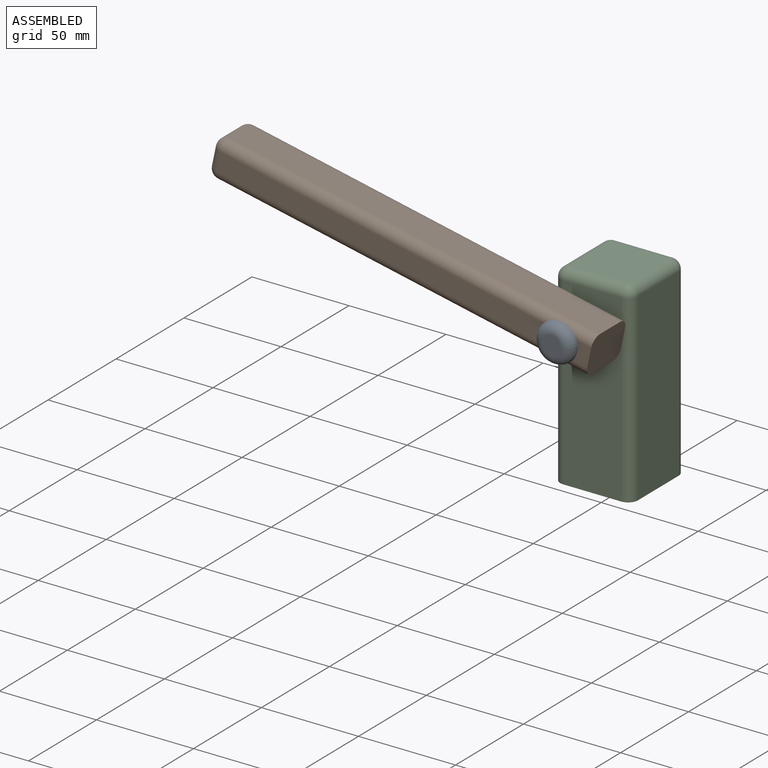
[diagram: assembled view]
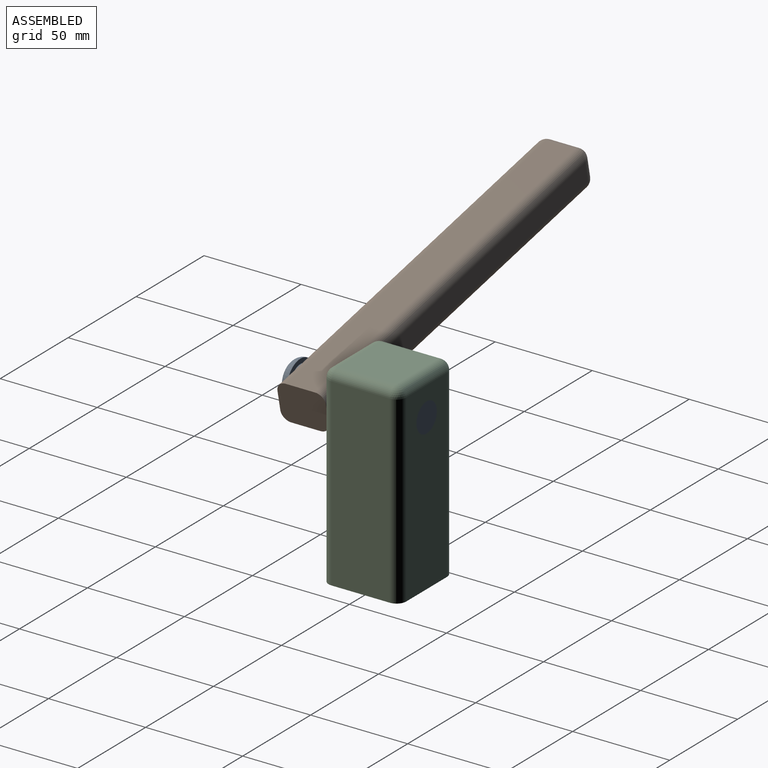
[diagram: assembled view, second angle]
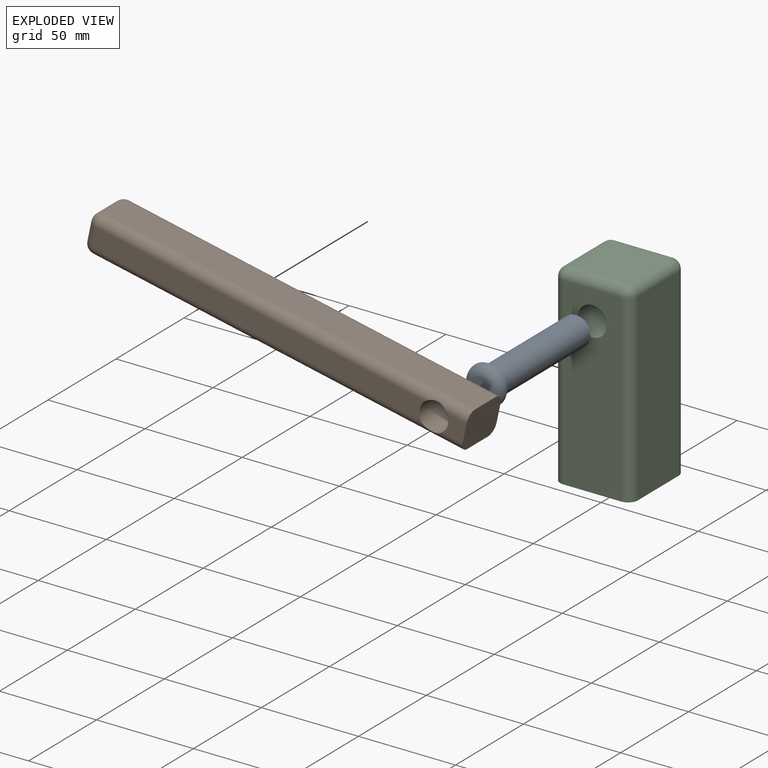
[diagram: exploded view]
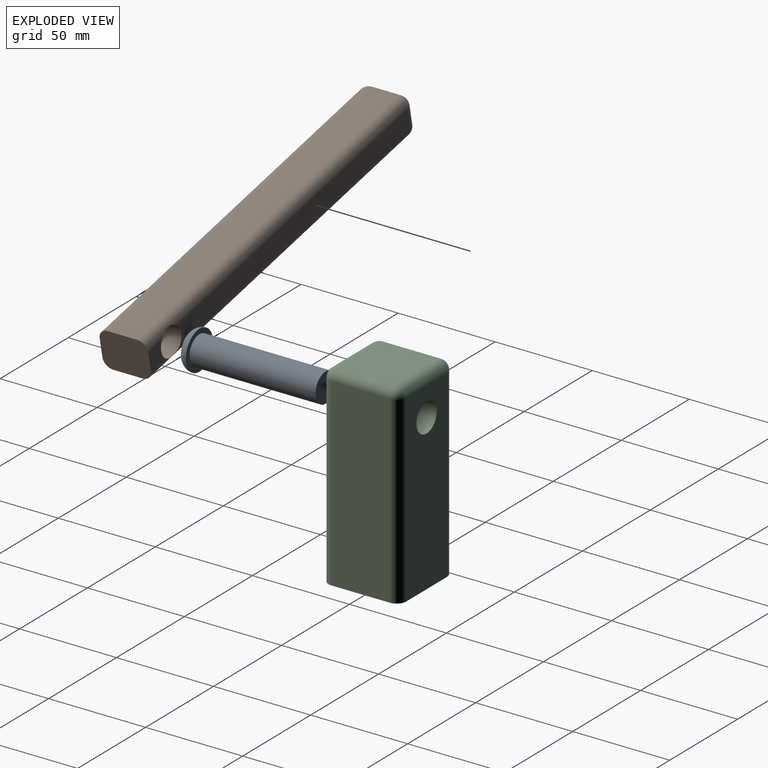
[diagram: exploded view, second angle]
ASSEMBLY  parts=3 mates=2
PART A: 5 faces, bbox 21.6x70x21.6 mm
  f0: cylinder r=7.5mm len=65mm, axis (0,1,0), area 3063.1mm2, adj f1,f3
  f1: plane 15x15mm, normal (0,1,0), area 176.7mm2, adj f0
  f2: plane 10x10mm, normal (0,-1,0), area 78.5mm2, adj f4
  f3: plane 20x20mm, normal (0,1,0), area 137.4mm2, adj f0,f4
  f4: torus R=5mm, axis (0,-1,0), area 403.8mm2, adj f2,f3
PART B: 21 faces, bbox 200x25x20 mm
  f0: plane 10.67x10mm, normal (0,-1,0), area 93.6mm2, adj f5,f6,f9,f14
  f1: plane 10.67x10mm, normal (0,1,0), area 93.6mm2, adj f5,f6,f11,f17
  f2: plane 195x15mm, normal (0,0,1), area 2925mm2, adj f6,f14,f17,f20
  f3: plane 15x10mm, normal (-1,0,0), area 150mm2, adj f10,f15,f16,f20
  f4: plane 195x15mm, normal (0,0,-1), area 2925mm2, adj f6,f9,f10,f11
  f5: cylinder r=7.5mm len=25mm, axis (0,1,0), area 1160.7mm2, adj f0,f1,f7,f8,f9,f11,f14,f17
  f6: plane 25x20mm, normal (1,0,0), area 478.5mm2, adj f0,f1,f2,f4,f9,f11,f14,f17
  f7: plane 173.15x10mm, normal (0,-1,0), area 1718.4mm2, adj f5,f9,f14,f15
  f8: plane 173.15x10mm, normal (0,1,0), area 1718.4mm2, adj f5,f11,f16,f17
  f9: cylinder r=5mm len=195mm, axis (-1,0,0), area 1511.5mm2, adj f0,f4,f5,f6,f7,f12
  f10: cylinder r=5mm len=15mm, axis (0,1,0), area 117.8mm2, adj f3,f4,f12,f13
  f11: cylinder r=5mm len=195mm, axis (1,0,0), area 1511.5mm2, adj f1,f4,f5,f6,f8,f13
  f12: sphere r=5mm, area 39.3mm2, adj f9,f10,f15
  f13: sphere r=5mm, area 39.3mm2, adj f10,f11,f16
  f14: cylinder r=5mm len=195mm, axis (1,0,0), area 1511.5mm2, adj f0,f2,f5,f6,f7,f18
  f15: cylinder r=5mm len=10mm, axis (0,0,1), area 78.5mm2, adj f3,f7,f12,f18
  f16: cylinder r=5mm len=10mm, axis (0,0,-1), area 78.5mm2, adj f3,f8,f13,f19
  f17: cylinder r=5mm len=195mm, axis (-1,0,0), area 1511.5mm2, adj f1,f2,f5,f6,f8,f19
  f18: sphere r=5mm, area 39.3mm2, adj f14,f15,f20
  f19: sphere r=5mm, area 39.3mm2, adj f16,f17,f20
  f20: cylinder r=5mm len=15mm, axis (0,-1,0), area 117.8mm2, adj f2,f3,f18,f19
PART C: 19 faces, bbox 40x40x100 mm
  f0: plane 40x40mm, normal (0,0,-1), area 1578.5mm2, adj f1,f3,f4,f5,f6,f8,f11,f14
  f1: plane 95x30mm, normal (1,0,0), area 2850mm2, adj f0,f11,f14,f17
  f2: plane 30x30mm, normal (0,0,1), area 900mm2, adj f7,f12,f13,f17
  f3: plane 95x30mm, normal (-1,0,0), area 2850mm2, adj f0,f6,f7,f8
  f4: plane 95x30mm, normal (0,-1,0), area 2673.3mm2, adj f0,f6,f11,f12,f18
  f5: plane 95x30mm, normal (0,1,0), area 2673.3mm2, adj f0,f8,f13,f14,f18
  f6: cylinder r=5mm len=95mm, axis (0,0,1), area 746.1mm2, adj f0,f3,f4,f9
  f7: cylinder r=5mm len=30mm, axis (0,-1,0), area 235.6mm2, adj f2,f3,f9,f10
  f8: cylinder r=5mm len=95mm, axis (0,0,-1), area 746.1mm2, adj f0,f3,f5,f10
  f9: sphere r=5mm, area 39.3mm2, adj f6,f7,f12
  f10: sphere r=5mm, area 39.3mm2, adj f7,f8,f13
  f11: cylinder r=5mm len=95mm, axis (0,0,-1), area 746.1mm2, adj f0,f1,f4,f15
  f12: cylinder r=5mm len=30mm, axis (1,0,0), area 235.6mm2, adj f2,f4,f9,f15
  f13: cylinder r=5mm len=30mm, axis (-1,0,0), area 235.6mm2, adj f2,f5,f10,f16
  f14: cylinder r=5mm len=95mm, axis (0,0,1), area 746.1mm2, adj f0,f1,f5,f16
  f15: sphere r=5mm, area 39.3mm2, adj f11,f12,f17
  f16: sphere r=5mm, area 39.3mm2, adj f13,f14,f17
  f17: cylinder r=5mm len=30mm, axis (0,1,0), area 235.6mm2, adj f1,f2,f15,f16
  f18: cylinder r=7.5mm len=40mm, axis (0,-1,0), area 1885mm2, adj f4,f5
PLACE A t=(-6.01,20.59,48.47)mm
PLACE B rot(axis=(0.99,0,-0.1),180deg) t=(63.03,-44.41,56.13)mm
PLACE C t=(-6.01,20.59,18.47)mm fixed
MATE revolute B.f5 <-> C.f18  axis (0,-1,0) through (-6.01,-19.41,48.47)mm
MATE revolute A.f0 <-> C.f18  axis (0,1,0) through (-6.01,20.59,48.47)mm
